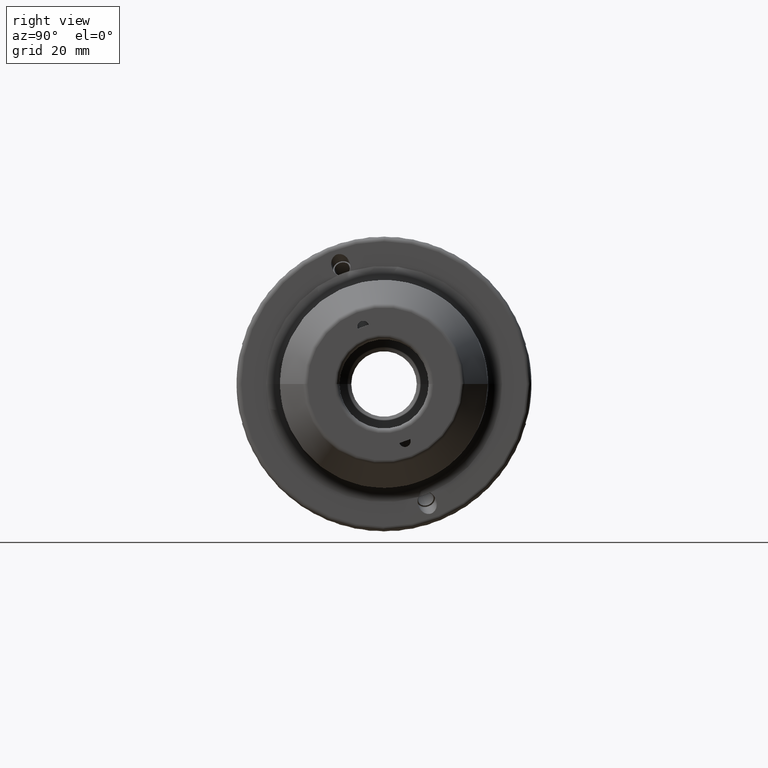
[diagram: clean part render]
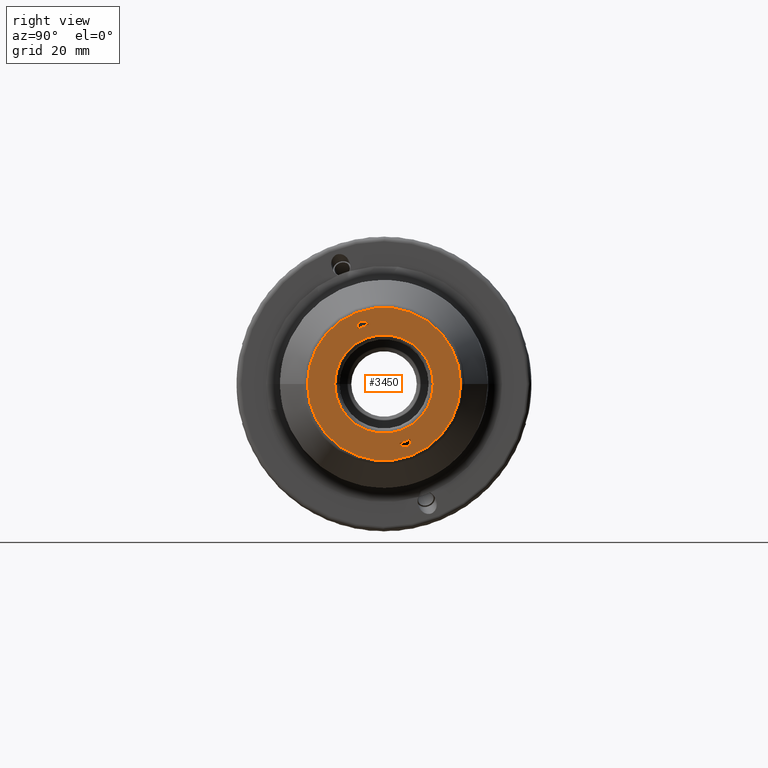
[diagram: same view with one face highlighted and labeled with its STEP entity id]
A machine part, right view. The second image highlights one B-rep face of the part: STEP entity #3450.
In plain terms, the highlighted planar face has unit normal (-1, 0, 0).
Its self-contained STEP definition (entity closure, byte-faithful):
#1200=CARTESIAN_POINT('',(6.3E1,0.E0,0.E0));
#1201=DIRECTION('',(-1.E0,0.E0,0.E0));
#1202=DIRECTION('',(0.E0,-1.E0,0.E0));
#1203=AXIS2_PLACEMENT_3D('',#1200,#1201,#1202);
#1205=CARTESIAN_POINT('',(6.3E1,0.E0,0.E0));
#1206=DIRECTION('',(1.E0,0.E0,0.E0));
#1207=DIRECTION('',(0.E0,-1.E0,0.E0));
#1208=AXIS2_PLACEMENT_3D('',#1205,#1206,#1207);
#1210=CARTESIAN_POINT('',(6.3E1,3.271646087251E0,-1.264352924937E1));
#1211=CARTESIAN_POINT('',(6.3E1,3.371554826021E0,-1.291802625315E1));
#1212=CARTESIAN_POINT('',(6.3E1,3.695983863228E0,-1.328905651015E1));
#1213=CARTESIAN_POINT('',(6.3E1,4.155250332951E0,-1.346751895667E1));
#1214=CARTESIAN_POINT('',(6.3E1,4.447363942982E0,-1.346751895667E1));
#1216=CARTESIAN_POINT('',(6.3E1,4.447363942982E0,-1.346751895667E1));
#1217=CARTESIAN_POINT('',(6.3E1,4.744983227914E0,-1.346751895667E1));
#1218=CARTESIAN_POINT('',(6.3E1,5.116469245968E0,-1.331084573320E1));
#1219=CARTESIAN_POINT('',(6.3E1,5.501561703137E0,-1.295530457414E1));
#1220=CARTESIAN_POINT('',(6.3E1,5.703103217791E0,-1.247123966149E1));
#1221=CARTESIAN_POINT('',(6.3E1,5.722669429705E0,-1.206814953691E1));
#1222=CARTESIAN_POINT('',(6.3E1,5.620877639216E0,-1.178847889106E1));
#1224=DIRECTION('',(0.E0,9.396926207859E-1,3.420201433257E-1));
#1225=VECTOR('',#1224,2.5E0);
#1226=CARTESIAN_POINT('',(6.3E1,3.271646087251E0,-1.264352924937E1));
#1227=LINE('',#1226,#1225);
#1228=CARTESIAN_POINT('',(6.3E1,-3.271646087251E0,1.264352924937E1));
#1229=CARTESIAN_POINT('',(6.3E1,-3.371554826021E0,1.291802625315E1));
#1230=CARTESIAN_POINT('',(6.3E1,-3.695983863228E0,1.328905651015E1));
#1231=CARTESIAN_POINT('',(6.3E1,-4.155250332951E0,1.346751895667E1));
#1232=CARTESIAN_POINT('',(6.3E1,-4.447363942982E0,1.346751895667E1));
#1234=CARTESIAN_POINT('',(6.3E1,-4.447363942982E0,1.346751895667E1));
#1235=CARTESIAN_POINT('',(6.3E1,-4.744983227914E0,1.346751895667E1));
#1236=CARTESIAN_POINT('',(6.3E1,-5.116469245968E0,1.331084573320E1));
#1237=CARTESIAN_POINT('',(6.3E1,-5.501561703137E0,1.295530457414E1));
#1238=CARTESIAN_POINT('',(6.3E1,-5.703103217791E0,1.247123966149E1));
#1239=CARTESIAN_POINT('',(6.3E1,-5.722669429705E0,1.206814953691E1));
#1240=CARTESIAN_POINT('',(6.3E1,-5.620877639216E0,1.178847889106E1));
#1242=DIRECTION('',(0.E0,9.396926207859E-1,3.420201433257E-1));
#1243=VECTOR('',#1242,2.5E0);
#1244=CARTESIAN_POINT('',(6.3E1,-5.620877639216E0,1.178847889106E1));
#1245=LINE('',#1244,#1243);
#1350=CARTESIAN_POINT('',(6.3E1,0.E0,0.E0));
#1351=DIRECTION('',(1.E0,0.E0,0.E0));
#1352=DIRECTION('',(0.E0,-1.E0,0.E0));
#1353=AXIS2_PLACEMENT_3D('',#1350,#1351,#1352);
#1360=CARTESIAN_POINT('',(6.3E1,0.E0,0.E0));
#1361=DIRECTION('',(-1.E0,0.E0,0.E0));
#1362=DIRECTION('',(0.E0,-1.E0,0.E0));
#1363=AXIS2_PLACEMENT_3D('',#1360,#1361,#1362);
#2084=CARTESIAN_POINT('',(6.3E1,-1.0525E1,0.E0));
#2085=VERTEX_POINT('',#2084);
#2086=CARTESIAN_POINT('',(6.3E1,-1.636292973919E1,0.E0));
#2088=VERTEX_POINT('',#2086);
#2100=CARTESIAN_POINT('',(6.3E1,1.0525E1,0.E0));
#2101=VERTEX_POINT('',#2100);
#2102=CARTESIAN_POINT('',(6.3E1,1.636292973919E1,0.E0));
#2104=VERTEX_POINT('',#2102);
#2158=VERTEX_POINT('',#1210);
#2159=VERTEX_POINT('',#1214);
#2160=CARTESIAN_POINT('',(6.3E1,5.620877639216E0,-1.178847889106E1));
#2161=VERTEX_POINT('',#2160);
#2172=VERTEX_POINT('',#1228);
#2173=VERTEX_POINT('',#1232);
#2174=CARTESIAN_POINT('',(6.3E1,-5.620877639216E0,1.178847889106E1));
#2175=VERTEX_POINT('',#2174);
#3418=CARTESIAN_POINT('',(6.3E1,0.E0,0.E0));
#3419=DIRECTION('',(-1.E0,0.E0,0.E0));
#3420=DIRECTION('',(0.E0,-1.E0,0.E0));
#3421=AXIS2_PLACEMENT_3D('',#3418,#3419,#3420);
#3422=PLANE('',#3421);
#3424=ORIENTED_EDGE('',*,*,#3423,.F.);
#3426=ORIENTED_EDGE('',*,*,#3425,.T.);
#3427=EDGE_LOOP('',(#3424,#3426));
#3428=FACE_OUTER_BOUND('',#3427,.F.);
#3430=ORIENTED_EDGE('',*,*,#3429,.F.);
#3432=ORIENTED_EDGE('',*,*,#3431,.T.);
#3433=EDGE_LOOP('',(#3430,#3432));
#3434=FACE_BOUND('',#3433,.F.);
#3435=ORIENTED_EDGE('',*,*,#3406,.T.);
#3437=ORIENTED_EDGE('',*,*,#3436,.T.);
#3439=ORIENTED_EDGE('',*,*,#3438,.F.);
#3440=EDGE_LOOP('',(#3435,#3437,#3439));
#3441=FACE_BOUND('',#3440,.F.);
#3443=ORIENTED_EDGE('',*,*,#3442,.T.);
#3445=ORIENTED_EDGE('',*,*,#3444,.T.);
#3447=ORIENTED_EDGE('',*,*,#3446,.T.);
#3448=EDGE_LOOP('',(#3443,#3445,#3447));
#3449=FACE_BOUND('',#3448,.F.);
#3450=ADVANCED_FACE('',(#3428,#3434,#3441,#3449),#3422,.F.);
#1204=CIRCLE('',#1203,1.0525E1);
#1209=CIRCLE('',#1208,1.0525E1);
#1215=B_SPLINE_CURVE_WITH_KNOTS('',3,(#1210,#1211,#1212,#1213,#1214),
.UNSPECIFIED.,.F.,.F.,(4,1,4),(0.E0,5.E-1,1.E0),.UNSPECIFIED.);
#1223=B_SPLINE_CURVE_WITH_KNOTS('',3,(#1216,#1217,#1218,#1219,#1220,#1221,
#1222),.UNSPECIFIED.,.F.,.F.,(4,1,1,1,4),(0.E0,2.5E-1,5.E-1,7.5E-1,1.E0),
.UNSPECIFIED.);
#1233=B_SPLINE_CURVE_WITH_KNOTS('',3,(#1228,#1229,#1230,#1231,#1232),
.UNSPECIFIED.,.F.,.F.,(4,1,4),(0.E0,5.E-1,1.E0),.UNSPECIFIED.);
#1241=B_SPLINE_CURVE_WITH_KNOTS('',3,(#1234,#1235,#1236,#1237,#1238,#1239,
#1240),.UNSPECIFIED.,.F.,.F.,(4,1,1,1,4),(0.E0,2.5E-1,5.E-1,7.5E-1,1.E0),
.UNSPECIFIED.);
#1354=CIRCLE('',#1353,1.636292973919E1);
#1364=CIRCLE('',#1363,1.636292973919E1);
#3406=EDGE_CURVE('',#2158,#2159,#1215,.T.);
#3423=EDGE_CURVE('',#2088,#2104,#1354,.T.);
#3425=EDGE_CURVE('',#2088,#2104,#1364,.T.);
#3429=EDGE_CURVE('',#2085,#2101,#1204,.T.);
#3431=EDGE_CURVE('',#2085,#2101,#1209,.T.);
#3436=EDGE_CURVE('',#2159,#2161,#1223,.T.);
#3438=EDGE_CURVE('',#2158,#2161,#1227,.T.);
#3442=EDGE_CURVE('',#2172,#2173,#1233,.T.);
#3444=EDGE_CURVE('',#2173,#2175,#1241,.T.);
#3446=EDGE_CURVE('',#2175,#2172,#1245,.T.);